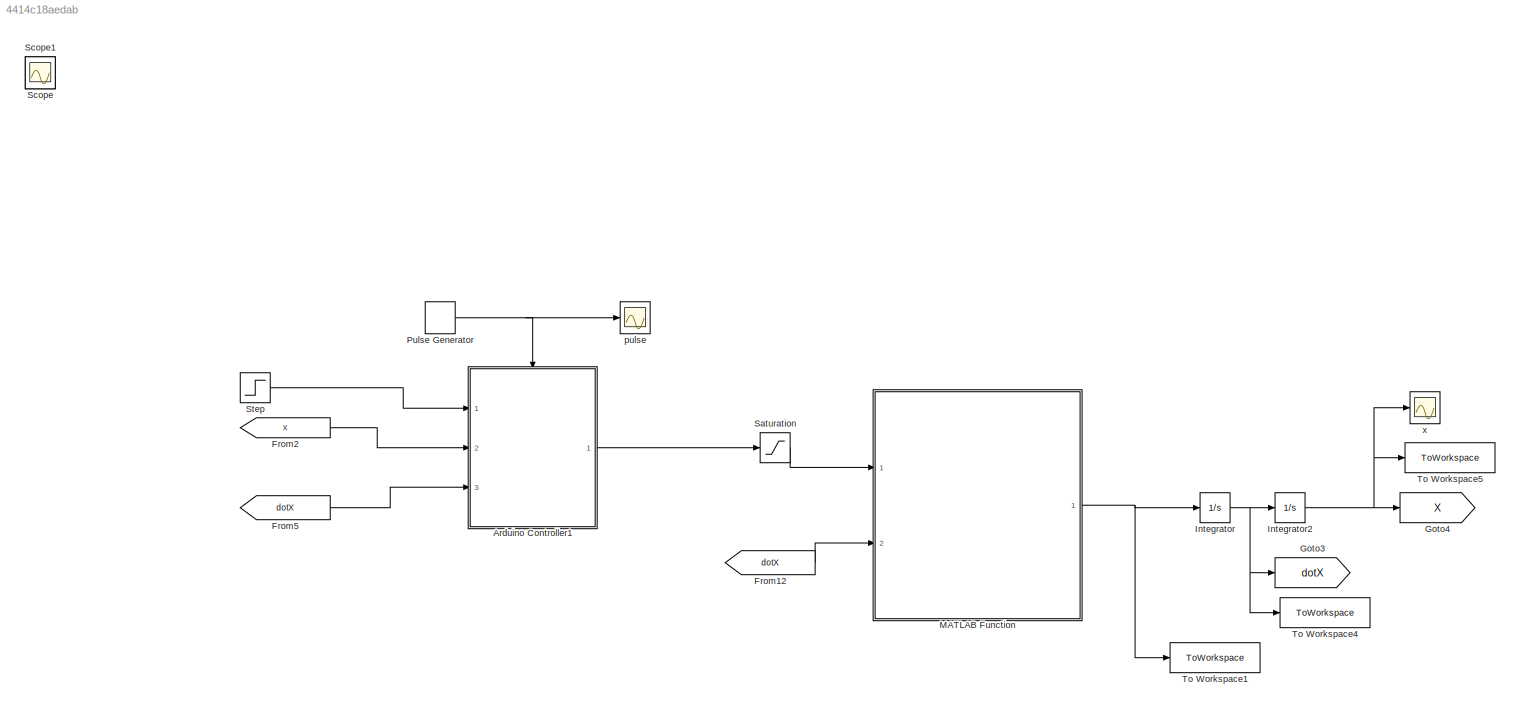
MODEL slx_4414c18aedab
KIND model
CONFIG AbsTol = auto
CONFIG EnableMultiTasking = off
CONFIG FixedStep = auto
CONFIG MaxStep = auto
CONFIG MinStep = auto
CONFIG RelTol = 1e-3
CONFIG SampleTimeConstraint = Unconstrained
CONFIG SolverName = VariableStepAuto
CONFIG StartTime = 0.0
CONFIG StopTime = 10.0
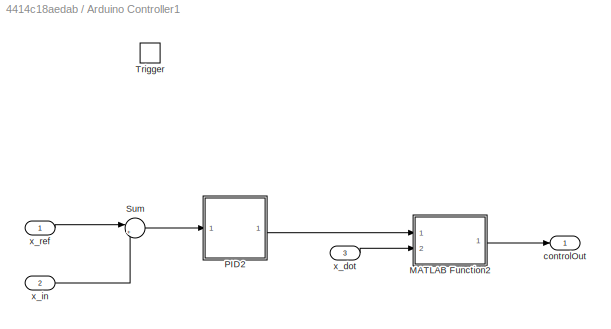
BLOCK [SubSystem] Arduino Controller1
  Ports = [3, 1, 0, 1]
  RequestExecContextInheritance = off
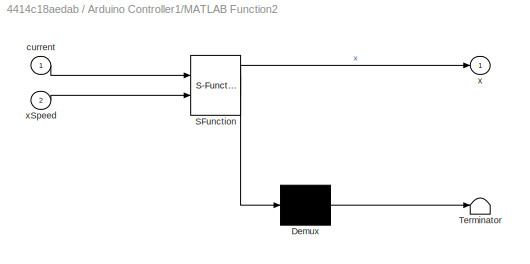
BLOCK [SubSystem] Arduino Controller1/MATLAB Function2
  ErrorFcn = Stateflow.Translate.translate
  PermitHierarchicalResolution = ExplicitOnly
  Ports = [2, 1]
  RequestExecContextInheritance = off
  SFBlockType = MATLAB Function
  TreatAsAtomicUnit = on
BLOCK [Demux] Arduino Controller1/MATLAB Function2/ Demux 
  Outputs = 1
  Ports = [1, 1]
BLOCK [S-Function] Arduino Controller1/MATLAB Function2/ SFunction 
  EnableBusSupport = on
  FunctionName = sf_sfun
  PortCounts = [2 2]
  Ports = [2, 2]
  SFcnIsStateOwnerBlock = off
  SFunctionDeploymentMode = off
  Tag = Stateflow S-Function 7
BLOCK [Terminator] Arduino Controller1/MATLAB Function2/ Terminator 
BLOCK [Inport] Arduino Controller1/MATLAB Function2/current
BLOCK [Outport] Arduino Controller1/MATLAB Function2/x
BLOCK [Inport] Arduino Controller1/MATLAB Function2/xSpeed
  Port = 2
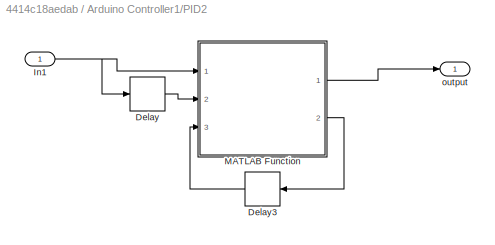
BLOCK [SubSystem] Arduino Controller1/PID2
  Ports = [1, 1]
  RequestExecContextInheritance = off
BLOCK [Delay] Arduino Controller1/PID2/Delay
  DelayLength = 1
  InitialCondition = 0
  InputPortMap = u0
  Ports = [1, 1]
BLOCK [Delay] Arduino Controller1/PID2/Delay3
  DelayLength = 1
  InitialCondition = 0
  InputPortMap = u0
  NameLocation = top
  Ports = [1, 1]
BLOCK [Inport] Arduino Controller1/PID2/In1
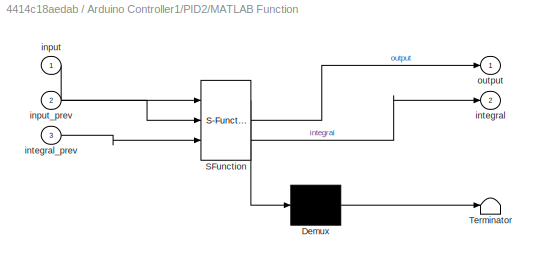
BLOCK [SubSystem] Arduino Controller1/PID2/MATLAB Function
  ErrorFcn = Stateflow.Translate.translate
  PermitHierarchicalResolution = ExplicitOnly
  Ports = [3, 2]
  RequestExecContextInheritance = off
  SFBlockType = MATLAB Function
  TreatAsAtomicUnit = on
BLOCK [Demux] Arduino Controller1/PID2/MATLAB Function/ Demux 
  Outputs = 1
  Ports = [1, 1]
BLOCK [S-Function] Arduino Controller1/PID2/MATLAB Function/ SFunction 
  EnableBusSupport = on
  FunctionName = sf_sfun
  Parameters = D,I,P
  PortCounts = [3 3]
  Ports = [3, 3]
  SFcnIsStateOwnerBlock = off
  SFunctionDeploymentMode = off
  Tag = Stateflow S-Function 8
BLOCK [Terminator] Arduino Controller1/PID2/MATLAB Function/ Terminator 
BLOCK [Inport] Arduino Controller1/PID2/MATLAB Function/input
BLOCK [Inport] Arduino Controller1/PID2/MATLAB Function/input_prev
  Port = 2
BLOCK [Outport] Arduino Controller1/PID2/MATLAB Function/integral
  Port = 2
BLOCK [Inport] Arduino Controller1/PID2/MATLAB Function/integral_prev
  Port = 3
BLOCK [Outport] Arduino Controller1/PID2/MATLAB Function/output
BLOCK [Outport] Arduino Controller1/PID2/output
BLOCK [Sum] Arduino Controller1/Sum
  Inputs = |+-
  Ports = [2, 1]
BLOCK [TriggerPort] Arduino Controller1/Trigger
  PortDimensions = 1
  Ports = []
  StatesWhenEnabling = held
  VariantControl = (inherit)
BLOCK [Outport] Arduino Controller1/controlOut
BLOCK [Inport] Arduino Controller1/x_dot
  Port = 3
BLOCK [Inport] Arduino Controller1/x_in
  Port = 2
BLOCK [Inport] Arduino Controller1/x_ref
BLOCK [From] From12
  GotoTag = dotX
BLOCK [From] From2
  GotoTag = X
BLOCK [From] From5
  GotoTag = dotX
BLOCK [Goto] Goto3
  GotoTag = dotX
BLOCK [Goto] Goto4
  GotoTag = X
BLOCK [Integrator] Integrator
  Ports = [1, 1]
BLOCK [Integrator] Integrator2
  Ports = [1, 1]
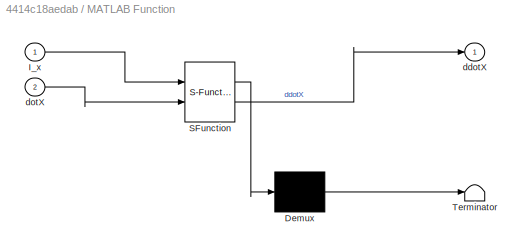
BLOCK [SubSystem] MATLAB Function
  ErrorFcn = Stateflow.Translate.translate
  PermitHierarchicalResolution = ExplicitOnly
  Ports = [2, 1]
  RequestExecContextInheritance = off
  SFBlockType = MATLAB Function
  TreatAsAtomicUnit = on
BLOCK [Demux] MATLAB Function/ Demux 
  Outputs = 1
  Ports = [1, 1]
BLOCK [S-Function] MATLAB Function/ SFunction 
  EnableBusSupport = on
  FunctionName = sf_sfun
  Parameters = B_x,J_x,cFrictionX,k_ex,m_l,m_t,r_x,sFrictionX
  PortCounts = [2 2]
  Ports = [2, 2]
  SFcnIsStateOwnerBlock = off
  SFunctionDeploymentMode = off
  Tag = Stateflow S-Function 2
BLOCK [Terminator] MATLAB Function/ Terminator 
BLOCK [Inport] MATLAB Function/I_x
BLOCK [Outport] MATLAB Function/ddotX
  VectorParamsAs1DForOutWhenUnconnected = off
BLOCK [Inport] MATLAB Function/dotX
  Port = 2
BLOCK [DiscretePulseGenerator] Pulse Generator
  Period = .01
  Ports = [0, 1]
  PulseType = Time based
  PulseWidth = 5
BLOCK [Saturate] Saturation
  LowerLimit = -10
  UpperLimit = 10
BLOCK [Scope] Scope
  Floating = off
  IOType = viewer
  NumInputPorts = 1
  Ports = []
  ScopeSpecificationString = Simulink.scopes.TimeScopeBlockCfg('CurrentConfiguration', extmgr.ConfigurationSet(extmgr.Configuration('Core','General UI',true),extmgr.Configuration('Core','Source UI',true),extmgr.Configuration('Sources','WiredSimulink',true,'DataLoggingVariableName','ScopeData1'),extmgr.Configuration('Visuals','Time Domain',true,'SerializedDisplays',{struct('MinYLimReal','-1878.20081','MaxYLimReal','2464.057','...<+1441ch>
BLOCK [Scope] Scope1
  Floating = off
  IOType = viewer
  NumInputPorts = 1
  Ports = []
  ScopeSpecificationString = Simulink.scopes.TimeScopeBlockCfg('CurrentConfiguration', extmgr.ConfigurationSet(extmgr.Configuration('Core','General UI',true),extmgr.Configuration('Core','Source UI',true),extmgr.Configuration('Sources','WiredSimulink',true,'DataLoggingVariableName','ScopeData2'),extmgr.Configuration('Visuals','Time Domain',true,'SerializedDisplays',{struct('MinYLimReal','-6.67212','MaxYLimReal','11.85246','YLa...<+1404ch>
BLOCK [Step] Step
  After = 0.5
  SampleTime = 0
BLOCK [ToWorkspace] To Workspace1
  FixptAsFi = on
  MaxDataPoints = inf
  Ports = [1]
  SampleTime = -1
  VariableName = ddotX
BLOCK [ToWorkspace] To Workspace4
  FixptAsFi = on
  MaxDataPoints = inf
  Ports = [1]
  SampleTime = -1
  VariableName = dotX1
BLOCK [ToWorkspace] To Workspace5
  FixptAsFi = on
  MaxDataPoints = inf
  Ports = [1]
  SampleTime = -1
  VariableName = X
BLOCK [Scope] pulse
  Floating = off
  NumInputPorts = 1
  Ports = [1]
  ScopeSpecificationString = Simulink.scopes.TimeScopeBlockCfg('CurrentConfiguration', extmgr.ConfigurationSet(extmgr.Configuration('Core','General UI',true),extmgr.Configuration('Core','Source UI',true),extmgr.Configuration('Sources','WiredSimulink',true,'DataLoggingVariableName','ScopeData1'),extmgr.Configuration('Visuals','Time Domain',true,'SerializedDisplays',{struct('MinYLimReal','-0.05105','MaxYLimReal','1.03012','YLab...<+1439ch>
BLOCK [Scope] x
  Floating = off
  NumInputPorts = 1
  Ports = [1]
  ScopeSpecificationString = Simulink.scopes.TimeScopeBlockCfg('CurrentConfiguration', extmgr.ConfigurationSet(extmgr.Configuration('Core','General UI',true),extmgr.Configuration('Core','Source UI',true),extmgr.Configuration('Sources','WiredSimulink',true),extmgr.Configuration('Visuals','Time Domain',true,'SerializedDisplays',{struct('MinYLimReal','-0.53562','MaxYLimReal','4.82061','YLabelReal','','MinYLimMag','0.00000','MaxY...<+1709ch>
LINE Arduino Controller1/MATLAB Function2:1 -> Arduino Controller1/controlOut:1
LINE Arduino Controller1/PID2/Delay3:1 -> Arduino Controller1/PID2/MATLAB Function:3
LINE Arduino Controller1/PID2/Delay:1 -> Arduino Controller1/PID2/MATLAB Function:2
NET Arduino Controller1/PID2/In1:1 -> Arduino Controller1/PID2/Delay:1, Arduino Controller1/PID2/MATLAB Function:1
LINE Arduino Controller1/PID2/MATLAB Function:1 -> Arduino Controller1/PID2/output:1
LINE Arduino Controller1/PID2/MATLAB Function:2 -> Arduino Controller1/PID2/Delay3:1
LINE Arduino Controller1/PID2:1 -> Arduino Controller1/MATLAB Function2:1
LINE Arduino Controller1/Sum:1 -> Arduino Controller1/PID2:1
LINE Arduino Controller1/x_dot:1 -> Arduino Controller1/MATLAB Function2:2
LINE Arduino Controller1/x_in:1 -> Arduino Controller1/Sum:2
LINE Arduino Controller1/x_ref:1 -> Arduino Controller1/Sum:1
LINE Arduino Controller1:1 -> Saturation:1
LINE From12:1 -> MATLAB Function:2
LINE From2:1 -> Arduino Controller1:2
LINE From5:1 -> Arduino Controller1:3
NET Integrator2:1 -> Goto4:1, To Workspace5:1, x:1
NET Integrator:1 -> Goto3:1, Integrator2:1, To Workspace4:1
NET MATLAB Function:1 -> Integrator:1, To Workspace1:1
NET Pulse Generator:1 -> Arduino Controller1:trigger, pulse:1
LINE Saturation:1 -> MATLAB Function:1
LINE Step:1 -> Arduino Controller1:1
note: NET lines group one-source signal fan-out (src -> all destinations, sorted); 1:1 wires keep LINE
CHART MATLAB Function states=1 transitions=1
  STATE_LABEL 'eML_blk_kernel()'
  STATE_LABEL 'SCRIPT:\nfunction ddotX = fcn5_10(I_x, dotX, J_x, r_x, k_ex, m_t, m_l, B_x, sFrictionX, cFrictionX)\n\nif(norm(dotX)<0.05)\n    friction = sFrictionX*sign(dotX);\nelse\n    friction = B_x*dotX+cFrictionX*sign(dotX);\nend\n\ntemp = I_x*k_ex/r_x;\n\ntemp = temp - friction;\n\ntemp = temp/(m_t+m_l+J_x/(r_x^2));\n\nddotX = temp;\n'
CHART Arduino Controller1/MATLAB Function2 states=1 transitions=1
  STATE_LABEL 'eML_blk_kernel()'
  STATE_LABEL 'SCRIPT:\nfunction x = fcn(current, xSpeed)\n    if (abs(current) < 0)\n        x = 0;\n    elseif (xSpeed < 0)\n        x = current - 2.8;\n    \n    elseif (xSpeed > 0)\n        x = current + 2.8;\n    else \n        x = current;\n    end\nend\n'
CHART Arduino Controller1/PID2/MATLAB Function states=1 transitions=1
  STATE_LABEL 'eML_blk_kernel()'
  STATE_LABEL 'SCRIPT:\nfunction [output, integral]= parallelPID(input, input_prev, integral_prev, P, I, D)\ndeltaTime = .01;\n\nproportional = input*P;\nderivative = D*(input-input_prev)/deltaTime;\nintegral = integral_prev + I*input*deltaTime; \n\noutput = proportional+derivative+integral;\n\nend\n'
CHART  states=0 transitions=0
CHART  states=0 transitions=0
CHART  states=0 transitions=0
